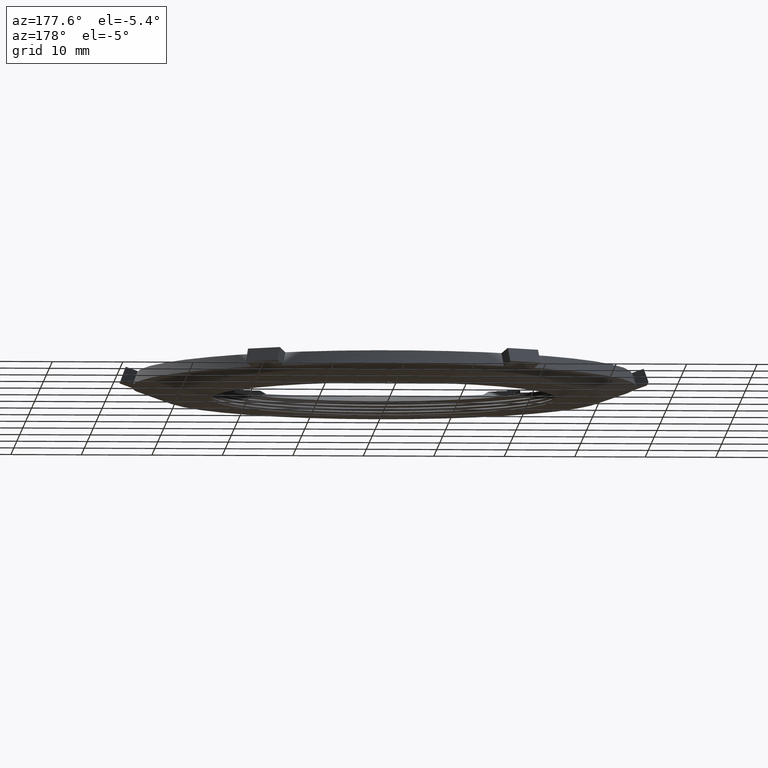
[diagram: clean part render]
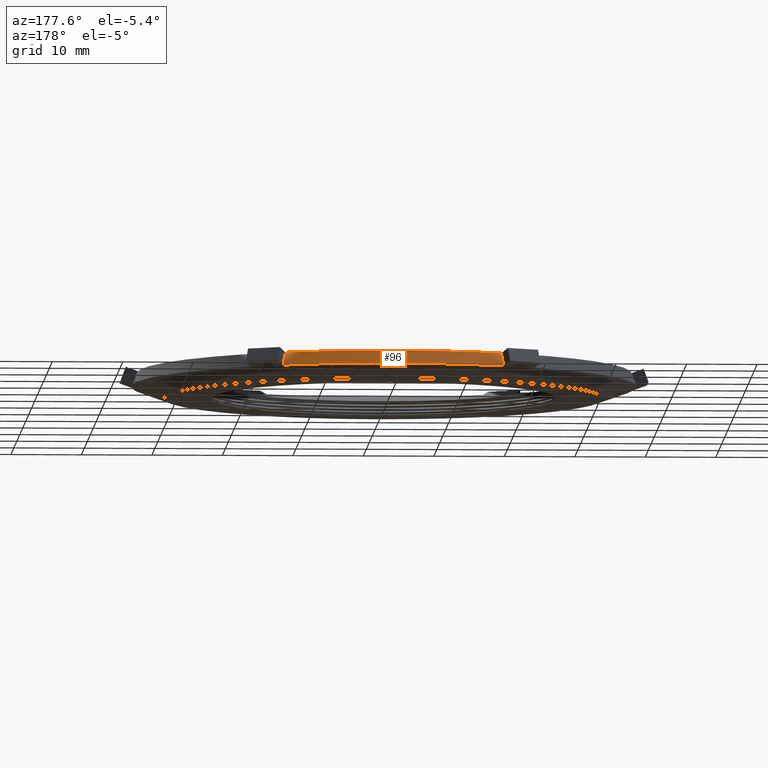
[diagram: same view with one face highlighted and labeled with its STEP entity id]
A machine part, auxiliary view. The second image highlights one B-rep face of the part: STEP entity #96.
In plain terms, the highlighted conical surface has half-angle 20 deg.
Its self-contained STEP definition (entity closure, byte-faithful):
#22 = VERTEX_POINT ( 'NONE', #771 ) ;
#96 = ADVANCED_FACE ( 'NONE', ( #1025 ), #1023, .T. ) ;
#97 = EDGE_LOOP ( 'NONE', ( #265, #469, #104, #258, #260, #467 ) ) ;
#103 = EDGE_CURVE ( 'NONE', #426, #432, #968, .T. ) ;
#104 = ORIENTED_EDGE ( 'NONE', *, *, #465, .F. ) ;
#110 = VERTEX_POINT ( 'NONE', #957 ) ;
#209 = EDGE_CURVE ( 'NONE', #110, #22, #1197, .T. ) ;
#258 = ORIENTED_EDGE ( 'NONE', *, *, #259, .F. ) ;
#259 = EDGE_CURVE ( 'NONE', #22, #451, #1301, .T. ) ;
#260 = ORIENTED_EDGE ( 'NONE', *, *, #209, .F. ) ;
#265 = ORIENTED_EDGE ( 'NONE', *, *, #266, .F. ) ;
#266 = EDGE_CURVE ( 'NONE', #426, #429, #1295, .T. ) ;
#412 = EDGE_CURVE ( 'NONE', #110, #429, #1495, .T. ) ;
#426 = VERTEX_POINT ( 'NONE', #1544 ) ;
#429 = VERTEX_POINT ( 'NONE', #1558 ) ;
#432 = VERTEX_POINT ( 'NONE', #1567 ) ;
#451 = VERTEX_POINT ( 'NONE', #1656 ) ;
#465 = EDGE_CURVE ( 'NONE', #451, #432, #1697, .T. ) ;
#467 = ORIENTED_EDGE ( 'NONE', *, *, #412, .T. ) ;
#469 = ORIENTED_EDGE ( 'NONE', *, *, #103, .T. ) ;
#771 = CARTESIAN_POINT ( 'NONE',  ( 0.6166221747731183100, 1.268020935780663500, -0.01448535783208483600 ) ) ;
#957 = CARTESIAN_POINT ( 'NONE',  ( -0.6166221747731272000, 1.268020935780659100, -0.01448535783208482500 ) ) ;
#964 = DIRECTION ( 'NONE',  ( -1.000000000000000000, 0.0000000000000000000, 0.0000000000000000000 ) ) ;
#965 = DIRECTION ( 'NONE',  ( -0.0000000000000000000, -0.0000000000000000000, -1.000000000000000000 ) ) ;
#966 = CARTESIAN_POINT ( 'NONE',  ( 0.0000000000000000000, 0.0000000000000000000, 0.05999999999999990800 ) ) ;
#967 = AXIS2_PLACEMENT_3D ( 'NONE', #966, #965, #964 ) ;
#968 = CIRCLE ( 'NONE', #967, 1.382889546860454700 ) ;
#1013 = DIRECTION ( 'NONE',  ( -1.000000000000000000, 0.0000000000000000000, 0.0000000000000000000 ) ) ;
#1014 = DIRECTION ( 'NONE',  ( -0.0000000000000000000, -0.0000000000000000000, -1.000000000000000000 ) ) ;
#1015 = CARTESIAN_POINT ( 'NONE',  ( 0.0000000000000000000, 0.0000000000000000000, 0.05999999999999990800 ) ) ;
#1016 = AXIS2_PLACEMENT_3D ( 'NONE', #1015, #1014, #1013 ) ;
#1023 = CONICAL_SURFACE ( 'NONE', #1016, 1.382889546860454700, 0.3490658503988599600 ) ;
#1025 = FACE_OUTER_BOUND ( 'NONE', #97, .T. ) ;
#1189 = DIRECTION ( 'NONE',  ( -1.000000000000000000, 0.0000000000000000000, 0.0000000000000000000 ) ) ;
#1190 = DIRECTION ( 'NONE',  ( -0.0000000000000000000, -0.0000000000000000000, -1.000000000000000000 ) ) ;
#1191 = CARTESIAN_POINT ( 'NONE',  ( 0.0000000000000000000, 0.0000000000000000000, -0.01448535783208477000 ) ) ;
#1192 = AXIS2_PLACEMENT_3D ( 'NONE', #1191, #1190, #1189 ) ;
#1197 = CIRCLE ( 'NONE', #1192, 1.409999999999999900 ) ;
#1295 =( BOUNDED_CURVE ( )  B_SPLINE_CURVE ( 3, ( #1299, #1308, #1307, #1306 ),
 .UNSPECIFIED., .F., .F. ) 
 B_SPLINE_CURVE_WITH_KNOTS ( ( 4, 4 ),
 ( 3.141592653589793100, 3.204925624186388600 ),
 .UNSPECIFIED. ) 
 CURVE ( )  GEOMETRIC_REPRESENTATION_ITEM ( )  RATIONAL_B_SPLINE_CURVE ( ( 1.000000000000000000, 0.9996657725003570400, 0.9996657725003570400, 1.000000000000000000 ) ) 
 REPRESENTATION_ITEM ( '' )  );
#1296 = CARTESIAN_POINT ( 'NONE',  ( 0.6077037844340121800, 1.252573830591600100, 0.03439622138126260200 ) ) ;
#1299 = CARTESIAN_POINT ( 'NONE',  ( -0.6914447734302329200, 1.197617478209101600, 0.05999999999999990800 ) ) ;
#1300 = CARTESIAN_POINT ( 'NONE',  ( 0.6032442958181748500, 1.244849769733195100, 0.05883679682148351700 ) ) ;
#1301 = B_SPLINE_CURVE_WITH_KNOTS ( 'NONE', 3,
 ( #1305, #1309, #1296, #1300 ),
 .UNSPECIFIED., .F., .F.,
 ( 4, 4 ),
 ( 2.128984767140928000E-007, 0.001982716490037709000 ),
 .UNSPECIFIED. ) ;
#1305 = CARTESIAN_POINT ( 'NONE',  ( 0.6166221747731183100, 1.268020935780663500, -0.01448535783208483600 ) ) ;
#1306 = CARTESIAN_POINT ( 'NONE',  ( -0.6032442958181835100, 1.244849769733190400, 0.05883679682148351000 ) ) ;
#1307 = CARTESIAN_POINT ( 'NONE',  ( -0.6331431350213500000, 1.230047440914455700, 0.05961213597233679800 ) ) ;
#1308 = CARTESIAN_POINT ( 'NONE',  ( -0.6625531238523978400, 1.214298079870196600, 0.05999999999999976900 ) ) ;
#1309 = CARTESIAN_POINT ( 'NONE',  ( 0.6121630737007176500, 1.260297546167180800, 0.009955500442793972400 ) ) ;
#1495 = B_SPLINE_CURVE_WITH_KNOTS ( 'NONE', 3,
 ( #1533, #1518, #1517, #1516 ),
 .UNSPECIFIED., .F., .F.,
 ( 4, 4 ),
 ( 2.128984767164862800E-007, 0.001982716490037717300 ),
 .UNSPECIFIED. ) ;
#1516 = CARTESIAN_POINT ( 'NONE',  ( -0.6032442958181835100, 1.244849769733190400, 0.05883679682148351000 ) ) ;
#1517 = CARTESIAN_POINT ( 'NONE',  ( -0.6077037844340208400, 1.252573830591595700, 0.03439622138126273400 ) ) ;
#1518 = CARTESIAN_POINT ( 'NONE',  ( -0.6121630737007264200, 1.260297546167176600, 0.009955500442794055700 ) ) ;
#1533 = CARTESIAN_POINT ( 'NONE',  ( -0.6166221747731272000, 1.268020935780659100, -0.01448535783208482500 ) ) ;
#1544 = CARTESIAN_POINT ( 'NONE',  ( -0.6914447734302329200, 1.197617478209101600, 0.05999999999999990800 ) ) ;
#1558 = CARTESIAN_POINT ( 'NONE',  ( -0.6032442958181835100, 1.244849769733190400, 0.05883679682148351000 ) ) ;
#1567 = CARTESIAN_POINT ( 'NONE',  ( 0.6914447734302249200, 1.197617478209107100, 0.06000000000000010900 ) ) ;
#1656 = CARTESIAN_POINT ( 'NONE',  ( 0.6032442958181748500, 1.244849769733195100, 0.05883679682148351700 ) ) ;
#1679 = CARTESIAN_POINT ( 'NONE',  ( 0.6914447734302249200, 1.197617478209107100, 0.06000000000000010900 ) ) ;
#1690 = CARTESIAN_POINT ( 'NONE',  ( 0.6032442958181748500, 1.244849769733195100, 0.05883679682148351700 ) ) ;
#1691 = CARTESIAN_POINT ( 'NONE',  ( 0.6625531238523892900, 1.214298079870201900, 0.05999999999999990800 ) ) ;
#1692 = CARTESIAN_POINT ( 'NONE',  ( 0.6331431350213415600, 1.230047440914461100, 0.05961213597233693700 ) ) ;
#1697 =( BOUNDED_CURVE ( )  B_SPLINE_CURVE ( 3, ( #1690, #1692, #1691, #1679 ),
 .UNSPECIFIED., .F., .T. ) 
 B_SPLINE_CURVE_WITH_KNOTS ( ( 4, 4 ),
 ( 3.078259682993197600, 3.141592653589793100 ),
 .UNSPECIFIED. ) 
 CURVE ( )  GEOMETRIC_REPRESENTATION_ITEM ( )  RATIONAL_B_SPLINE_CURVE ( ( 1.000000000000000000, 0.9996657725003570400, 0.9996657725003570400, 1.000000000000000000 ) ) 
 REPRESENTATION_ITEM ( '' )  );